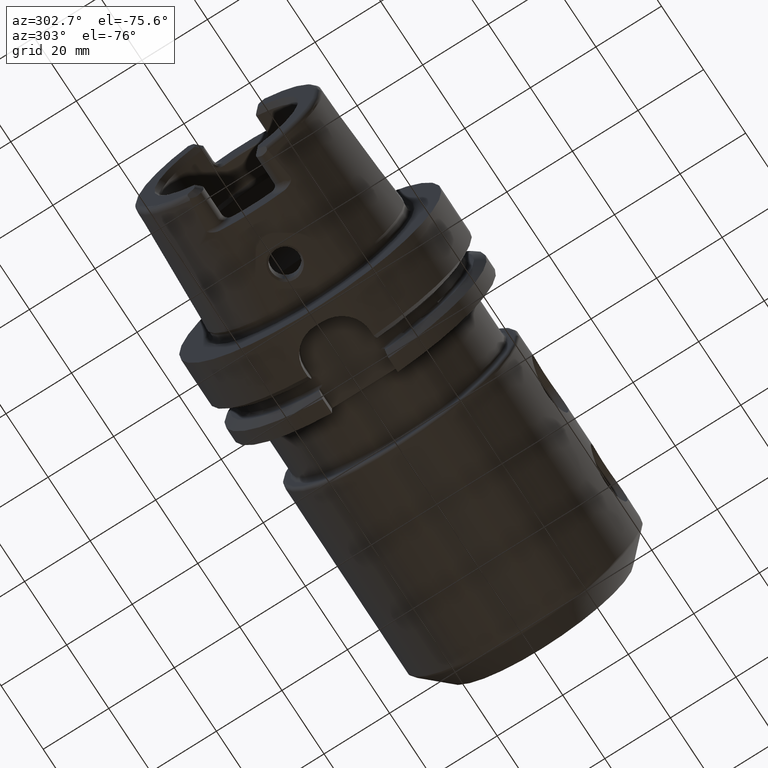
[diagram: clean part render]
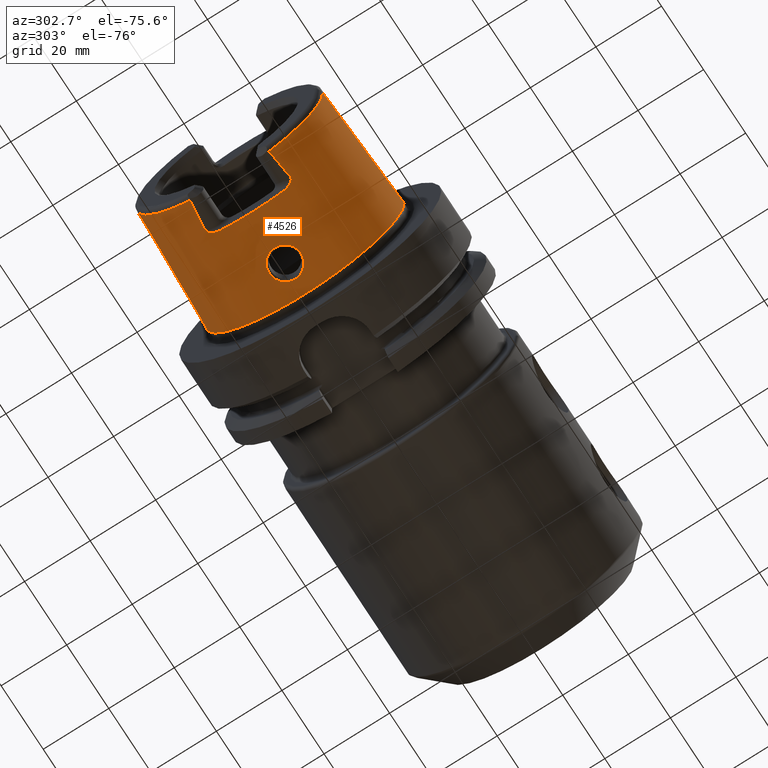
[diagram: same view with one face highlighted and labeled with its STEP entity id]
A machine part, auxiliary view. The second image highlights one B-rep face of the part: STEP entity #4526.
In plain terms, the highlighted conical surface has half-angle 2.868 deg.
Its self-contained STEP definition (entity closure, byte-faithful):
#180=CARTESIAN_POINT('',(-3.838005958779E1,1.202761494014E1,-2.582E1));
#186=CARTESIAN_POINT('',(-3.838005958779E1,0.E0,0.E0));
#187=DIRECTION('',(-1.E0,0.E0,0.E0));
#188=DIRECTION('',(0.E0,1.E0,0.E0));
#189=AXIS2_PLACEMENT_3D('',#186,#187,#188);
#278=CARTESIAN_POINT('',(-3.838005958779E1,0.E0,0.E0));
#279=DIRECTION('',(-1.E0,0.E0,0.E0));
#280=DIRECTION('',(0.E0,-4.222592419107E-1,-9.064751141763E-1));
#281=AXIS2_PLACEMENT_3D('',#278,#279,#280);
#730=CARTESIAN_POINT('',(-2.975E1,-1.301850419617E1,-2.582E1));
#731=CARTESIAN_POINT('',(-2.968817012267E1,-1.302538466641E1,-2.582E1));
#732=CARTESIAN_POINT('',(-2.956299777957E1,-1.302749191685E1,
-2.582596164662E1));
#733=CARTESIAN_POINT('',(-2.936954945167E1,-1.299132099544E1,
-2.585504830462E1));
#734=CARTESIAN_POINT('',(-2.918034263303E1,-1.291508692441E1,
-2.590385803045E1));
#735=CARTESIAN_POINT('',(-2.899390445295E1,-1.279659390855E1,
-2.597309663809E1));
#736=CARTESIAN_POINT('',(-2.881522007170E1,-1.263543100396E1,
-2.606192985538E1));
#737=CARTESIAN_POINT('',(-2.864923698813E1,-1.243569024116E1,
-2.616716364350E1));
#738=CARTESIAN_POINT('',(-2.849321734190E1,-1.219185308043E1,
-2.629043402258E1));
#739=CARTESIAN_POINT('',(-2.839886859709E1,-1.200196267003E1,
-2.638254811990E1));
#740=CARTESIAN_POINT('',(-2.835420492490E1,-1.19E1,-2.643090880527E1));
#747=CARTESIAN_POINT('',(-2.835420492490E1,-1.19E1,-2.643090880527E1));
#748=CARTESIAN_POINT('',(-2.826663056114E1,-1.170007653832E1,
-2.652573209330E1));
#749=CARTESIAN_POINT('',(-2.811388043495E1,-1.131125391552E1,
-2.670365920435E1));
#750=CARTESIAN_POINT('',(-2.795632044543E1,-1.075859996200E1,
-2.693922831301E1));
#751=CARTESIAN_POINT('',(-2.786818638240E1,-1.024634138993E1,
-2.714260242949E1));
#752=CARTESIAN_POINT('',(-2.785E1,-9.927833977335E0,-2.726045648699E1));
#753=CARTESIAN_POINT('',(-2.785E1,-9.774932602561E0,-2.731517335128E1));
#760=CARTESIAN_POINT('',(-3.838005958779E1,1.202761494014E1,-2.582E1));
#761=CARTESIAN_POINT('',(-3.745415597640E1,1.213747108141E1,-2.582E1));
#762=CARTESIAN_POINT('',(-3.558035991696E1,1.235731854656E1,-2.582E1));
#763=CARTESIAN_POINT('',(-3.270442086494E1,1.268749398342E1,-2.582E1));
#764=CARTESIAN_POINT('',(-3.074221298843E1,1.290809006903E1,-2.582E1));
#765=CARTESIAN_POINT('',(-2.975E1,1.301850419617E1,-2.582E1));
#767=CARTESIAN_POINT('',(-2.785E1,0.E0,0.E0));
#768=DIRECTION('',(1.E0,0.E0,0.E0));
#769=DIRECTION('',(0.E0,-3.369328558871E-1,-9.415286775366E-1));
#770=AXIS2_PLACEMENT_3D('',#767,#768,#769);
#772=CARTESIAN_POINT('',(-2.975E1,-1.301850419617E1,-2.582E1));
#773=CARTESIAN_POINT('',(-3.074210877537E1,-1.290810166593E1,-2.582E1));
#774=CARTESIAN_POINT('',(-3.270417781812E1,-1.268752150760E1,-2.582E1));
#775=CARTESIAN_POINT('',(-3.558012244799E1,-1.235734618700E1,-2.582E1));
#776=CARTESIAN_POINT('',(-3.745405425823E1,-1.213748315002E1,-2.582E1));
#777=CARTESIAN_POINT('',(-3.838005958779E1,-1.202761494014E1,-2.582E1));
#779=DIRECTION('',(-9.987473526255E-1,5.003724236654E-2,0.E0));
#780=VECTOR('',#779,3.592506102115E1);
#781=CARTESIAN_POINT('',(-2.5E0,-3.028155E1,0.E0));
#782=LINE('',#781,#780);
#783=CARTESIAN_POINT('',(-2.5E0,0.E0,0.E0));
#784=DIRECTION('',(1.E0,0.E0,0.E0));
#785=DIRECTION('',(0.E0,-1.E0,0.E0));
#786=AXIS2_PLACEMENT_3D('',#783,#784,#785);
#788=DIRECTION('',(-9.987473526255E-1,-5.003724236654E-2,0.E0));
#789=VECTOR('',#788,3.592506102115E1);
#790=CARTESIAN_POINT('',(-2.5E0,3.028155E1,0.E0));
#791=LINE('',#790,#789);
#792=CARTESIAN_POINT('',(-7.150738217697E0,8.994451579323E-11,
-3.004853462745E1));
#793=CARTESIAN_POINT('',(-7.150670348561E0,1.883823428315E-1,
-3.004856715252E1));
#794=CARTESIAN_POINT('',(-7.175205402036E0,6.091424561096E-1,
-3.004335113228E1));
#795=CARTESIAN_POINT('',(-7.297970879970E0,1.254407549414E0,-3.001752872291E1));
#796=CARTESIAN_POINT('',(-7.526356613862E0,1.916676373695E0,-2.997082815557E1));
#797=CARTESIAN_POINT('',(-7.848340421532E0,2.540697631094E0,-2.990790349599E1));
#798=CARTESIAN_POINT('',(-8.259161265747E0,3.114164100198E0,-2.983258581079E1));
#799=CARTESIAN_POINT('',(-8.750556432264E0,3.623145404335E0,-2.974985475721E1));
#800=CARTESIAN_POINT('',(-9.311425767580E0,4.055327461775E0,-2.966526858883E1));
#801=CARTESIAN_POINT('',(-9.929235942440E0,4.401081051398E0,-2.958429583226E1));
#802=CARTESIAN_POINT('',(-1.058996394597E1,4.653068379316E0,-2.951191567748E1));
#803=CARTESIAN_POINT('',(-1.127912661564E1,4.806537462661E0,-2.945214212570E1));
#804=CARTESIAN_POINT('',(-1.198172022337E1,4.859014240854E0,-2.940778465984E1));
#805=CARTESIAN_POINT('',(-1.268343238371E1,4.810199283126E0,-2.938023625163E1));
#806=CARTESIAN_POINT('',(-1.337014389513E1,4.661524214903E0,-2.936952242654E1));
#807=CARTESIAN_POINT('',(-1.402810859828E1,4.416127713986E0,-2.937435362017E1));
#808=CARTESIAN_POINT('',(-1.464412150747E1,4.078793705685E0,-2.939227774568E1));
#809=CARTESIAN_POINT('',(-1.520575007621E1,3.655885076361E0,-2.941991430187E1));
#810=CARTESIAN_POINT('',(-1.570137174484E1,3.155257191280E0,-2.945325244670E1));
#811=CARTESIAN_POINT('',(-1.611946261777E1,2.587706003999E0,-2.948789844632E1));
#812=CARTESIAN_POINT('',(-1.645065949990E1,1.965939283046E0,-2.951957195106E1));
#813=CARTESIAN_POINT('',(-1.668840530602E1,1.302734498009E0,-2.954461433780E1));
#814=CARTESIAN_POINT('',(-1.682163697964E1,6.409706211319E-1,
-2.955949019924E1));
#815=CARTESIAN_POINT('',(-1.684937254655E1,2.033670650922E-1,
-2.956267943923E1));
#816=CARTESIAN_POINT('',(-1.684926277325E1,-5.444857283659E-11,
-2.956263755503E1));
#818=CARTESIAN_POINT('',(-1.684926277325E1,-5.444857283659E-11,
-2.956263755503E1));
#819=CARTESIAN_POINT('',(-1.684933920776E1,-1.910938426319E-1,
-2.956266625974E1));
#820=CARTESIAN_POINT('',(-1.682403793491E1,-6.164807950408E-1,
-2.955977205275E1));
#821=CARTESIAN_POINT('',(-1.669816493798E1,-1.267166181988E0,
-2.954568197622E1));
#822=CARTESIAN_POINT('',(-1.646545029930E1,-1.932179827483E0,
-2.952107400270E1));
#823=CARTESIAN_POINT('',(-1.613903577869E1,-2.556362763548E0,
-2.948966654139E1));
#824=CARTESIAN_POINT('',(-1.572533749007E1,-3.127019464910E0,
-2.945507754336E1));
#825=CARTESIAN_POINT('',(-1.523358401817E1,-3.631388253849E0,
-2.942156454338E1));
#826=CARTESIAN_POINT('',(-1.467518107806E1,-4.058580086998E0,
-2.939352476781E1));
#827=CARTESIAN_POINT('',(-1.406173819845E1,-4.400591726251E0,
-2.937499782779E1));
#828=CARTESIAN_POINT('',(-1.340571234786E1,-4.650950185994E0,
-2.936940622182E1));
#829=CARTESIAN_POINT('',(-1.272024996820E1,-4.804813422755E0,
-2.937925441747E1));
#830=CARTESIAN_POINT('',(-1.201904053808E1,-4.858961458387E0,
-2.940589798630E1));
#831=CARTESIAN_POINT('',(-1.131617693035E1,-4.811865373085E0,
-2.944938466875E1));
#832=CARTESIAN_POINT('',(-1.062595710986E1,-4.663719116764E0,
-2.950839632090E1));
#833=CARTESIAN_POINT('',(-9.963399157683E0,-4.416881808774E0,
-2.958019305323E1));
#834=CARTESIAN_POINT('',(-9.343015005483E0,-4.075993038839E0,
-2.966081805539E1));
#835=CARTESIAN_POINT('',(-8.778826012137E0,-3.648232964378E0,
-2.974533998004E1));
#836=CARTESIAN_POINT('',(-8.283424907188E0,-3.143058428346E0,
-2.982831234806E1));
#837=CARTESIAN_POINT('',(-7.868086454238E0,-2.572710593660E0,
-2.990415591138E1));
#838=CARTESIAN_POINT('',(-7.541237327722E0,-1.951104963565E0,
-2.996784457851E1));
#839=CARTESIAN_POINT('',(-7.307759304352E0,-1.290622073542E0,
-3.001549338364E1));
#840=CARTESIAN_POINT('',(-7.177600308987E0,-6.340113276146E-1,
-3.004283506491E1));
#841=CARTESIAN_POINT('',(-7.150638763898E0,-2.008316494822E-1,
-3.004858275135E1));
#842=CARTESIAN_POINT('',(-7.150738217697E0,8.994451579323E-11,
-3.004853462745E1));
#852=CARTESIAN_POINT('',(-2.835420492490E1,1.19E1,-2.643090880527E1));
#853=CARTESIAN_POINT('',(-2.839912707071E1,1.200255273931E1,-2.638226825125E1));
#854=CARTESIAN_POINT('',(-2.849403313786E1,1.219352185174E1,-2.628962422265E1));
#855=CARTESIAN_POINT('',(-2.865190867140E1,1.243946904627E1,-2.616522252327E1));
#856=CARTESIAN_POINT('',(-2.881861580005E1,1.263911340060E1,-2.605995656595E1));
#857=CARTESIAN_POINT('',(-2.900049690496E1,1.280195179487E1,-2.597009282450E1));
#858=CARTESIAN_POINT('',(-2.919172752406E1,1.292128311041E1,-2.590012889968E1));
#859=CARTESIAN_POINT('',(-2.938351507422E1,1.299495634754E1,-2.585243433842E1));
#860=CARTESIAN_POINT('',(-2.956677627317E1,1.302720499466E1,-2.582589364187E1));
#861=CARTESIAN_POINT('',(-2.968942164933E1,1.302524539568E1,-2.582E1));
#862=CARTESIAN_POINT('',(-2.975E1,1.301850419617E1,-2.582E1));
#864=CARTESIAN_POINT('',(-2.785E1,9.774932602561E0,-2.731517335128E1));
#865=CARTESIAN_POINT('',(-2.785E1,9.927906285998E0,-2.726043061082E1));
#866=CARTESIAN_POINT('',(-2.786820458469E1,1.024651688198E1,-2.714253565733E1));
#867=CARTESIAN_POINT('',(-2.795636081409E1,1.075876891577E1,-2.693915841523E1));
#868=CARTESIAN_POINT('',(-2.811392555391E1,1.131137781592E1,-2.670360364991E1));
#869=CARTESIAN_POINT('',(-2.826665111071E1,1.170012345092E1,-2.652570984274E1));
#870=CARTESIAN_POINT('',(-2.835420492490E1,1.19E1,-2.643090880527E1));
#3175=CARTESIAN_POINT('',(-2.5E0,3.028155E1,0.E0));
#3176=CARTESIAN_POINT('',(-2.5E0,-3.028155E1,0.E0));
#3177=VERTEX_POINT('',#3175);
#3178=VERTEX_POINT('',#3176);
#3179=CARTESIAN_POINT('',(-3.838005958779E1,2.848395901465E1,0.E0));
#3180=VERTEX_POINT('',#3179);
#3181=CARTESIAN_POINT('',(-3.838005958779E1,-2.848395901465E1,0.E0));
#3182=VERTEX_POINT('',#3181);
#3199=VERTEX_POINT('',#180);
#3201=CARTESIAN_POINT('',(-3.838005958779E1,-1.202761494014E1,-2.582E1));
#3202=VERTEX_POINT('',#3201);
#3228=CARTESIAN_POINT('',(-2.835420492490E1,-1.19E1,-2.643090880527E1));
#3230=VERTEX_POINT('',#3228);
#3231=VERTEX_POINT('',#753);
#3232=VERTEX_POINT('',#864);
#3233=VERTEX_POINT('',#870);
#3244=CARTESIAN_POINT('',(-2.975E1,-1.301850419617E1,-2.582E1));
#3245=VERTEX_POINT('',#3244);
#3246=CARTESIAN_POINT('',(-2.975E1,1.301850419617E1,-2.582E1));
#3247=VERTEX_POINT('',#3246);
#3495=VERTEX_POINT('',#792);
#3496=VERTEX_POINT('',#816);
#4496=CARTESIAN_POINT('',(-2.044002979389E1,0.E0,0.E0));
#4497=DIRECTION('',(1.E0,0.E0,0.E0));
#4498=DIRECTION('',(0.E0,-1.E0,0.E0));
#4499=AXIS2_PLACEMENT_3D('',#4496,#4497,#4498);
#4500=CONICAL_SURFACE('',#4499,2.938275450733E1,2.868120487315E0);
#4502=ORIENTED_EDGE('',*,*,#4501,.T.);
#4504=ORIENTED_EDGE('',*,*,#4503,.F.);
#4506=ORIENTED_EDGE('',*,*,#4505,.F.);
#4508=ORIENTED_EDGE('',*,*,#4507,.F.);
#4509=ORIENTED_EDGE('',*,*,#4486,.F.);
#4510=ORIENTED_EDGE('',*,*,#4475,.F.);
#4511=ORIENTED_EDGE('',*,*,#4462,.T.);
#4512=ORIENTED_EDGE('',*,*,#3856,.T.);
#4513=ORIENTED_EDGE('',*,*,#3714,.F.);
#4515=ORIENTED_EDGE('',*,*,#4514,.T.);
#4516=ORIENTED_EDGE('',*,*,#3710,.T.);
#4517=ORIENTED_EDGE('',*,*,#3828,.T.);
#4518=EDGE_LOOP('',(#4502,#4504,#4506,#4508,#4509,#4510,#4511,#4512,#4513,#4515,
#4516,#4517));
#4519=FACE_OUTER_BOUND('',#4518,.F.);
#4521=ORIENTED_EDGE('',*,*,#4520,.F.);
#4523=ORIENTED_EDGE('',*,*,#4522,.F.);
#4524=EDGE_LOOP('',(#4521,#4523));
#4525=FACE_BOUND('',#4524,.F.);
#4526=ADVANCED_FACE('',(#4519,#4525),#4500,.T.);
#190=CIRCLE('',#189,2.848395901465E1);
#282=CIRCLE('',#281,2.848395901465E1);
#741=B_SPLINE_CURVE_WITH_KNOTS('',3,(#730,#731,#732,#733,#734,#735,#736,#737,
#738,#739,#740),.UNSPECIFIED.,.F.,.F.,(4,1,1,1,1,1,1,1,4),(0.E0,1.25E-1,2.5E-1,
3.75E-1,5.E-1,6.25E-1,7.5E-1,8.75E-1,1.E0),.UNSPECIFIED.);
#754=B_SPLINE_CURVE_WITH_KNOTS('',3,(#747,#748,#749,#750,#751,#752,#753),
.UNSPECIFIED.,.F.,.F.,(4,1,1,1,4),(0.E0,2.5E-1,5.E-1,7.5E-1,1.E0),
.UNSPECIFIED.);
#766=B_SPLINE_CURVE_WITH_KNOTS('',3,(#760,#761,#762,#763,#764,#765),
.UNSPECIFIED.,.F.,.F.,(4,1,1,4),(0.E0,3.333333333333E-1,6.666666666667E-1,1.E0),
.UNSPECIFIED.);
#771=CIRCLE('',#770,2.9011515E1);
#778=B_SPLINE_CURVE_WITH_KNOTS('',3,(#772,#773,#774,#775,#776,#777),
.UNSPECIFIED.,.F.,.F.,(4,1,1,4),(0.E0,3.333333333333E-1,6.666666666667E-1,1.E0),
.UNSPECIFIED.);
#787=CIRCLE('',#786,3.028155E1);
#817=B_SPLINE_CURVE_WITH_KNOTS('',3,(#792,#793,#794,#795,#796,#797,#798,#799,
#800,#801,#802,#803,#804,#805,#806,#807,#808,#809,#810,#811,#812,#813,#814,#815,
#816),.UNSPECIFIED.,.F.,.F.,(4,1,1,1,1,1,1,1,1,1,1,1,1,1,1,1,1,1,1,1,1,1,4),(
0.E0,3.758306845898E-2,8.369185511496E-2,1.298006417709E-1,1.759094284269E-1,
2.220182150829E-1,2.681270017389E-1,3.142357883949E-1,3.603445750508E-1,
4.064533617068E-1,4.525621483628E-1,4.986709350188E-1,5.447797216748E-1,
5.908885083307E-1,6.369972949867E-1,6.831060816427E-1,7.292148682987E-1,
7.753236549547E-1,8.214324416106E-1,8.675412282666E-1,9.136500149226E-1,
9.597588015786E-1,1.E0),.UNSPECIFIED.);
#843=B_SPLINE_CURVE_WITH_KNOTS('',3,(#818,#819,#820,#821,#822,#823,#824,#825,
#826,#827,#828,#829,#830,#831,#832,#833,#834,#835,#836,#837,#838,#839,#840,#841,
#842),.UNSPECIFIED.,.F.,.F.,(4,1,1,1,1,1,1,1,1,1,1,1,1,1,1,1,1,1,1,1,1,1,4),(
0.E0,3.777735326750E-2,8.388346054352E-2,1.299895678195E-1,1.760956750956E-1,
2.222017823716E-1,2.683078896476E-1,3.144139969236E-1,3.605201041996E-1,
4.066262114757E-1,4.527323187517E-1,4.988384260277E-1,5.449445333037E-1,
5.910506405797E-1,6.371567478558E-1,6.832628551318E-1,7.293689624078E-1,
7.754750696838E-1,8.215811769598E-1,8.676872842359E-1,9.137933915119E-1,
9.598994987879E-1,1.E0),.UNSPECIFIED.);
#863=B_SPLINE_CURVE_WITH_KNOTS('',3,(#852,#853,#854,#855,#856,#857,#858,#859,
#860,#861,#862),.UNSPECIFIED.,.F.,.F.,(4,1,1,1,1,1,1,1,4),(0.E0,1.25E-1,2.5E-1,
3.75E-1,5.E-1,6.25E-1,7.5E-1,8.75E-1,1.E0),.UNSPECIFIED.);
#871=B_SPLINE_CURVE_WITH_KNOTS('',3,(#864,#865,#866,#867,#868,#869,#870),
.UNSPECIFIED.,.F.,.F.,(4,1,1,1,4),(0.E0,2.5E-1,5.E-1,7.5E-1,1.E0),
.UNSPECIFIED.);
#3710=EDGE_CURVE('',#3177,#3180,#791,.T.);
#3714=EDGE_CURVE('',#3178,#3182,#782,.T.);
#3828=EDGE_CURVE('',#3180,#3199,#190,.T.);
#3856=EDGE_CURVE('',#3202,#3182,#282,.T.);
#4462=EDGE_CURVE('',#3245,#3202,#778,.T.);
#4475=EDGE_CURVE('',#3245,#3230,#741,.T.);
#4486=EDGE_CURVE('',#3230,#3231,#754,.T.);
#4501=EDGE_CURVE('',#3199,#3247,#766,.T.);
#4503=EDGE_CURVE('',#3233,#3247,#863,.T.);
#4505=EDGE_CURVE('',#3232,#3233,#871,.T.);
#4507=EDGE_CURVE('',#3231,#3232,#771,.T.);
#4514=EDGE_CURVE('',#3178,#3177,#787,.T.);
#4520=EDGE_CURVE('',#3495,#3496,#817,.T.);
#4522=EDGE_CURVE('',#3496,#3495,#843,.T.);